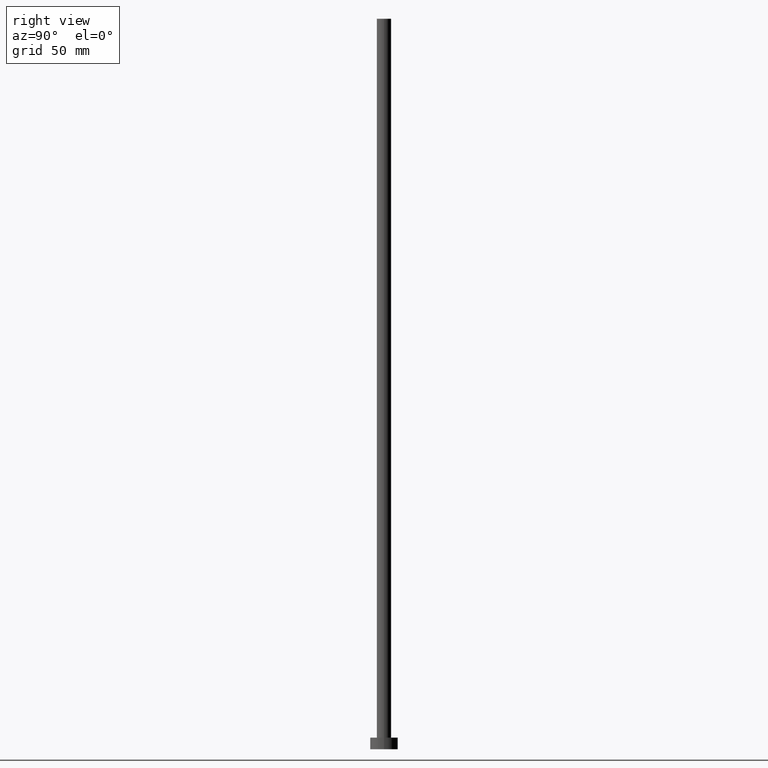
[diagram: clean part render]
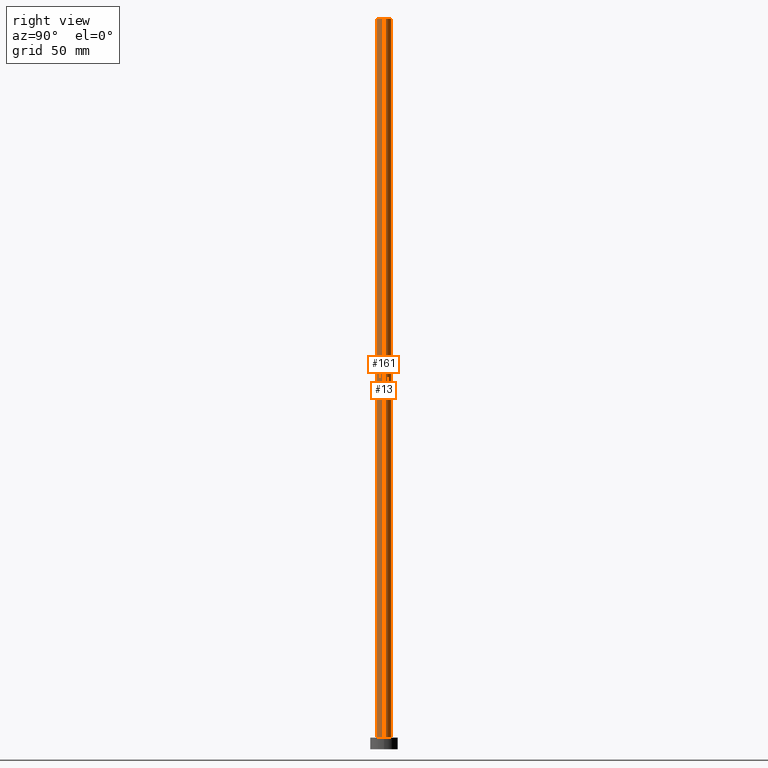
[diagram: same view with one multi-face feature highlighted, each face labeled with its STEP entity id]
A machine part, right view. The highlighted faces form ONE feature: a constant-radius fillet chain: 2 tangent blend faces with common blend radius 3.1 mm. The faces share edges in the B-rep.
Their STEP definitions:
[1] entity #161 (Cylinder):
#6 = VERTEX_POINT ( 'NONE', #234 ) ;
#16 = DIRECTION ( 'NONE',  ( -0.000000000000000000, -0.000000000000000000, -1.000000000000000000 ) ) ;
#18 = EDGE_CURVE ( 'NONE', #6, #193, #121, .T. ) ;
#29 = CARTESIAN_POINT ( 'NONE',  ( -3.100000000000000089, 0.000000000000000000, 315.0000000000000000 ) ) ;
#33 = CARTESIAN_POINT ( 'NONE',  ( 3.100000000000000089, 3.796405077356794918E-16, 315.0000000000000000 ) ) ;
#34 = DIRECTION ( 'NONE',  ( -1.000000000000000000, 0.000000000000000000, 0.000000000000000000 ) ) ;
#36 = EDGE_CURVE ( 'NONE', #84, #46, #68, .T. ) ;
#46 = VERTEX_POINT ( 'NONE', #149 ) ;
#62 = ORIENTED_EDGE ( 'NONE', *, *, #245, .T. ) ;
#67 = DIRECTION ( 'NONE',  ( 1.000000000000000000, 0.000000000000000000, 0.000000000000000000 ) ) ;
#68 = CIRCLE ( 'NONE', #154, 3.100000000000000089 ) ;
#71 = DIRECTION ( 'NONE',  ( -0.000000000000000000, -0.000000000000000000, -1.000000000000000000 ) ) ;
#77 = ORIENTED_EDGE ( 'NONE', *, *, #18, .T. ) ;
#84 = VERTEX_POINT ( 'NONE', #181 ) ;
#87 = VECTOR ( 'NONE', #71, 1000.000000000000000 ) ;
#88 = CARTESIAN_POINT ( 'NONE',  ( 0.000000000000000000, 0.000000000000000000, 315.0000000000000000 ) ) ;
#92 = AXIS2_PLACEMENT_3D ( 'NONE', #231, #166, #251 ) ;
#115 = CARTESIAN_POINT ( 'NONE',  ( 3.100000000000000089, 3.796405077356794918E-16, 5.000000000000000000 ) ) ;
#121 = CIRCLE ( 'NONE', #92, 3.100000000000000089 ) ;
#135 = DIRECTION ( 'NONE',  ( -0.000000000000000000, -0.000000000000000000, -1.000000000000000000 ) ) ;
#149 = CARTESIAN_POINT ( 'NONE',  ( 3.100000000000000089, 3.796405077356794918E-16, 315.0000000000000000 ) ) ;
#153 = FACE_OUTER_BOUND ( 'NONE', #169, .T. ) ;
#154 = AXIS2_PLACEMENT_3D ( 'NONE', #253, #235, #67 ) ;
#161 = ADVANCED_FACE ( 'NONE', ( #153 ), #241, .T. ) ;
#166 = DIRECTION ( 'NONE',  ( 0.000000000000000000, 0.000000000000000000, 1.000000000000000000 ) ) ;
#168 = AXIS2_PLACEMENT_3D ( 'NONE', #88, #135, #34 ) ;
#169 = EDGE_LOOP ( 'NONE', ( #191, #218, #62, #77 ) ) ;
#181 = CARTESIAN_POINT ( 'NONE',  ( -3.100000000000000089, 0.000000000000000000, 315.0000000000000000 ) ) ;
#184 = VECTOR ( 'NONE', #16, 1000.000000000000000 ) ;
#191 = ORIENTED_EDGE ( 'NONE', *, *, #238, .F. ) ;
#193 = VERTEX_POINT ( 'NONE', #115 ) ;
#218 = ORIENTED_EDGE ( 'NONE', *, *, #36, .F. ) ;
#220 = LINE ( 'NONE', #33, #87 ) ;
#225 = LINE ( 'NONE', #29, #184 ) ;
#231 = CARTESIAN_POINT ( 'NONE',  ( 0.000000000000000000, 0.000000000000000000, 5.000000000000000000 ) ) ;
#234 = CARTESIAN_POINT ( 'NONE',  ( -3.100000000000000089, 0.000000000000000000, 5.000000000000000000 ) ) ;
#235 = DIRECTION ( 'NONE',  ( 0.000000000000000000, 0.000000000000000000, 1.000000000000000000 ) ) ;
#238 = EDGE_CURVE ( 'NONE', #46, #193, #220, .T. ) ;
#241 = CYLINDRICAL_SURFACE ( 'NONE', #168, 3.100000000000000089 ) ;
#245 = EDGE_CURVE ( 'NONE', #84, #6, #225, .T. ) ;
#251 = DIRECTION ( 'NONE',  ( 1.000000000000000000, 0.000000000000000000, 0.000000000000000000 ) ) ;
#253 = CARTESIAN_POINT ( 'NONE',  ( 0.000000000000000000, 0.000000000000000000, 315.0000000000000000 ) ) ;
[2] entity #13 (Cylinder):
#6 = VERTEX_POINT ( 'NONE', #234 ) ;
#7 = DIRECTION ( 'NONE',  ( -0.000000000000000000, -0.000000000000000000, -1.000000000000000000 ) ) ;
#8 = FACE_OUTER_BOUND ( 'NONE', #141, .T. ) ;
#13 = ADVANCED_FACE ( 'NONE', ( #8 ), #42, .T. ) ;
#16 = DIRECTION ( 'NONE',  ( -0.000000000000000000, -0.000000000000000000, -1.000000000000000000 ) ) ;
#29 = CARTESIAN_POINT ( 'NONE',  ( -3.100000000000000089, 0.000000000000000000, 315.0000000000000000 ) ) ;
#33 = CARTESIAN_POINT ( 'NONE',  ( 3.100000000000000089, 3.796405077356794918E-16, 315.0000000000000000 ) ) ;
#41 = AXIS2_PLACEMENT_3D ( 'NONE', #152, #48, #151 ) ;
#42 = CYLINDRICAL_SURFACE ( 'NONE', #99, 3.100000000000000089 ) ;
#43 = DIRECTION ( 'NONE',  ( -1.000000000000000000, 0.000000000000000000, 0.000000000000000000 ) ) ;
#46 = VERTEX_POINT ( 'NONE', #149 ) ;
#48 = DIRECTION ( 'NONE',  ( 0.000000000000000000, 0.000000000000000000, 1.000000000000000000 ) ) ;
#49 = DIRECTION ( 'NONE',  ( 1.000000000000000000, 0.000000000000000000, 0.000000000000000000 ) ) ;
#52 = CARTESIAN_POINT ( 'NONE',  ( 0.000000000000000000, 0.000000000000000000, 5.000000000000000000 ) ) ;
#71 = DIRECTION ( 'NONE',  ( -0.000000000000000000, -0.000000000000000000, -1.000000000000000000 ) ) ;
#82 = ORIENTED_EDGE ( 'NONE', *, *, #245, .F. ) ;
#84 = VERTEX_POINT ( 'NONE', #181 ) ;
#87 = VECTOR ( 'NONE', #71, 1000.000000000000000 ) ;
#99 = AXIS2_PLACEMENT_3D ( 'NONE', #103, #7, #43 ) ;
#103 = CARTESIAN_POINT ( 'NONE',  ( 0.000000000000000000, 0.000000000000000000, 315.0000000000000000 ) ) ;
#105 = EDGE_CURVE ( 'NONE', #46, #84, #158, .T. ) ;
#115 = CARTESIAN_POINT ( 'NONE',  ( 3.100000000000000089, 3.796405077356794918E-16, 5.000000000000000000 ) ) ;
#120 = ORIENTED_EDGE ( 'NONE', *, *, #205, .T. ) ;
#141 = EDGE_LOOP ( 'NONE', ( #228, #215, #120, #82 ) ) ;
#149 = CARTESIAN_POINT ( 'NONE',  ( 3.100000000000000089, 3.796405077356794918E-16, 315.0000000000000000 ) ) ;
#151 = DIRECTION ( 'NONE',  ( 1.000000000000000000, 0.000000000000000000, 0.000000000000000000 ) ) ;
#152 = CARTESIAN_POINT ( 'NONE',  ( 0.000000000000000000, 0.000000000000000000, 315.0000000000000000 ) ) ;
#158 = CIRCLE ( 'NONE', #41, 3.100000000000000089 ) ;
#160 = AXIS2_PLACEMENT_3D ( 'NONE', #52, #204, #49 ) ;
#181 = CARTESIAN_POINT ( 'NONE',  ( -3.100000000000000089, 0.000000000000000000, 315.0000000000000000 ) ) ;
#184 = VECTOR ( 'NONE', #16, 1000.000000000000000 ) ;
#193 = VERTEX_POINT ( 'NONE', #115 ) ;
#204 = DIRECTION ( 'NONE',  ( 0.000000000000000000, 0.000000000000000000, 1.000000000000000000 ) ) ;
#205 = EDGE_CURVE ( 'NONE', #193, #6, #213, .T. ) ;
#213 = CIRCLE ( 'NONE', #160, 3.100000000000000089 ) ;
#215 = ORIENTED_EDGE ( 'NONE', *, *, #238, .T. ) ;
#220 = LINE ( 'NONE', #33, #87 ) ;
#225 = LINE ( 'NONE', #29, #184 ) ;
#228 = ORIENTED_EDGE ( 'NONE', *, *, #105, .F. ) ;
#234 = CARTESIAN_POINT ( 'NONE',  ( -3.100000000000000089, 0.000000000000000000, 5.000000000000000000 ) ) ;
#238 = EDGE_CURVE ( 'NONE', #46, #193, #220, .T. ) ;
#245 = EDGE_CURVE ( 'NONE', #84, #6, #225, .T. ) ;